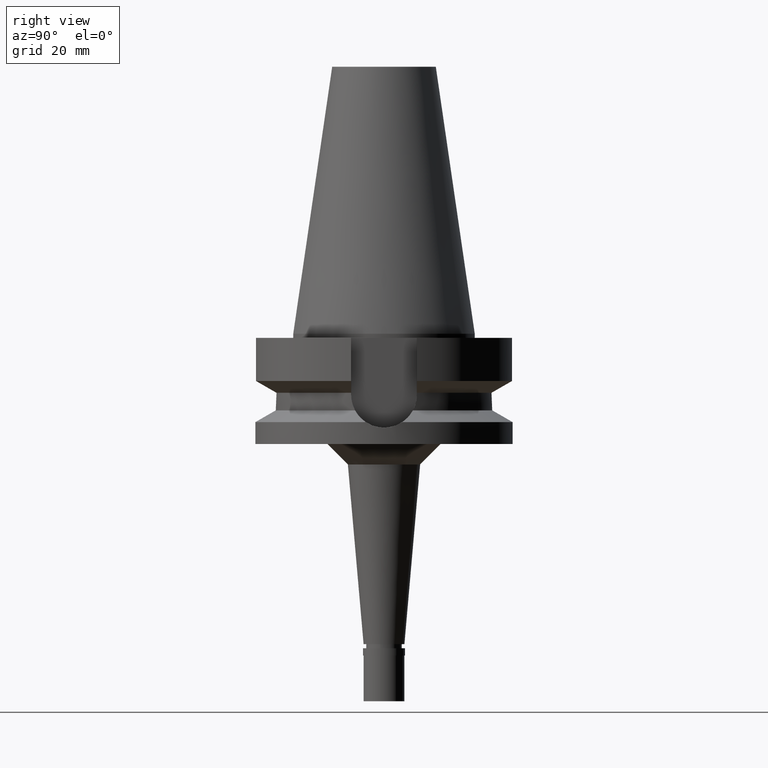
[diagram: clean part render]
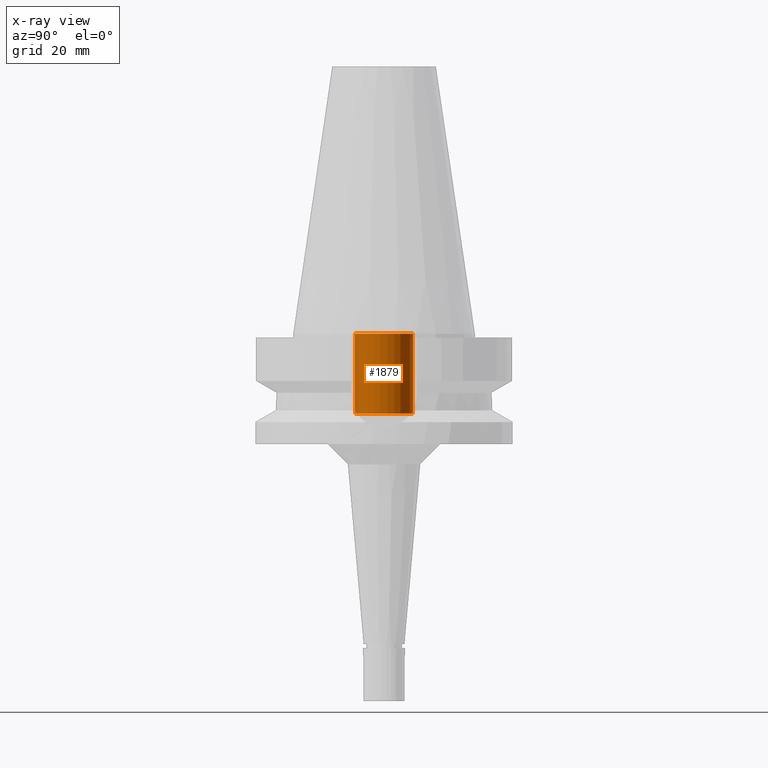
[diagram: x-ray — body ghosted, one internal face saturated and labeled with its STEP entity id]
A machine part, right view, then the same camera in x-ray: the body is ghosted and one INTERNAL B-rep face — a face not visible from any outside direction — is saturated and labeled: STEP entity #1879.
In plain terms, the highlighted cylindrical surface (edge-blend (fillet) strip) has radius 7.1 mm, axis along (0, 0, -1).
Its self-contained STEP definition (entity closure, byte-faithful):
#12 = EDGE_CURVE ( 'NONE', #270, #161, #2665, .T. ) ;
#105 = VERTEX_POINT ( 'NONE', #2721 ) ;
#161 = VERTEX_POINT ( 'NONE', #1569 ) ;
#178 = CYLINDRICAL_SURFACE ( 'NONE', #1464, 7.100000000000000533 ) ;
#270 = VERTEX_POINT ( 'NONE', #1530 ) ;
#291 = AXIS2_PLACEMENT_3D ( 'NONE', #318, #2385, #1467 ) ;
#318 = CARTESIAN_POINT ( 'NONE',  ( 0.0000000000000000000, 2.118455265505000055E-14, -1.136868377215999875E-13 ) ) ;
#325 = CARTESIAN_POINT ( 'NONE',  ( 0.0000000000000000000, 7.100000000000000533, -19.59999999999999787 ) ) ;
#390 = CARTESIAN_POINT ( 'NONE',  ( 0.0000000000000000000, 2.118455265505000055E-14, 72.98499999999999943 ) ) ;
#474 = LINE ( 'NONE', #2326, #2841 ) ;
#712 = CARTESIAN_POINT ( 'NONE',  ( 0.0000000000000000000, 2.118455265505000055E-14, -19.59999999999999787 ) ) ;
#721 = EDGE_LOOP ( 'NONE', ( #2773, #1474, #1729, #2503 ) ) ;
#875 = DIRECTION ( 'NONE',  ( 0.0000000000000000000, -1.000000000000000000, 0.0000000000000000000 ) ) ;
#933 = VERTEX_POINT ( 'NONE', #2174 ) ;
#981 = EDGE_CURVE ( 'NONE', #105, #161, #2422, .T. ) ;
#1087 = FACE_OUTER_BOUND ( 'NONE', #721, .T. ) ;
#1143 = DIRECTION ( 'NONE',  ( 0.0000000000000000000, 0.0000000000000000000, 1.000000000000000000 ) ) ;
#1304 = EDGE_CURVE ( 'NONE', #105, #933, #1994, .T. ) ;
#1417 = DIRECTION ( 'NONE',  ( 0.0000000000000000000, 0.0000000000000000000, 1.000000000000000000 ) ) ;
#1464 = AXIS2_PLACEMENT_3D ( 'NONE', #390, #2941, #875 ) ;
#1467 = DIRECTION ( 'NONE',  ( 0.0000000000000000000, -1.000000000000000000, 0.0000000000000000000 ) ) ;
#1474 = ORIENTED_EDGE ( 'NONE', *, *, #2723, .T. ) ;
#1530 = CARTESIAN_POINT ( 'NONE',  ( 0.0000000000000000000, -7.100000000000000533, -1.136868377215999875E-13 ) ) ;
#1569 = CARTESIAN_POINT ( 'NONE',  ( 0.0000000000000000000, 7.100000000000000533, -1.136868377215999875E-13 ) ) ;
#1601 = VECTOR ( 'NONE', #1417, 1000.000000000000000 ) ;
#1616 = DIRECTION ( 'NONE',  ( 0.0000000000000000000, 0.0000000000000000000, -1.000000000000000000 ) ) ;
#1693 = AXIS2_PLACEMENT_3D ( 'NONE', #712, #1616, #2567 ) ;
#1729 = ORIENTED_EDGE ( 'NONE', *, *, #12, .T. ) ;
#1879 = ADVANCED_FACE ( 'NONE', ( #1087 ), #178, .F. ) ;
#1994 = CIRCLE ( 'NONE', #1693, 7.100000000000000533 ) ;
#2174 = CARTESIAN_POINT ( 'NONE',  ( 0.0000000000000000000, -7.100000000000000533, -19.59999999999999787 ) ) ;
#2326 = CARTESIAN_POINT ( 'NONE',  ( 0.0000000000000000000, -7.100000000000000533, -19.59999999999999787 ) ) ;
#2385 = DIRECTION ( 'NONE',  ( 0.0000000000000000000, 0.0000000000000000000, 1.000000000000000000 ) ) ;
#2422 = LINE ( 'NONE', #325, #1601 ) ;
#2503 = ORIENTED_EDGE ( 'NONE', *, *, #981, .F. ) ;
#2567 = DIRECTION ( 'NONE',  ( 0.0000000000000000000, 1.000000000000000000, 0.0000000000000000000 ) ) ;
#2665 = CIRCLE ( 'NONE', #291, 7.100000000000000533 ) ;
#2721 = CARTESIAN_POINT ( 'NONE',  ( 0.0000000000000000000, 7.100000000000000533, -19.59999999999999787 ) ) ;
#2723 = EDGE_CURVE ( 'NONE', #933, #270, #474, .T. ) ;
#2773 = ORIENTED_EDGE ( 'NONE', *, *, #1304, .T. ) ;
#2841 = VECTOR ( 'NONE', #1143, 1000.000000000000000 ) ;
#2941 = DIRECTION ( 'NONE',  ( 0.0000000000000000000, 0.0000000000000000000, -1.000000000000000000 ) ) ;